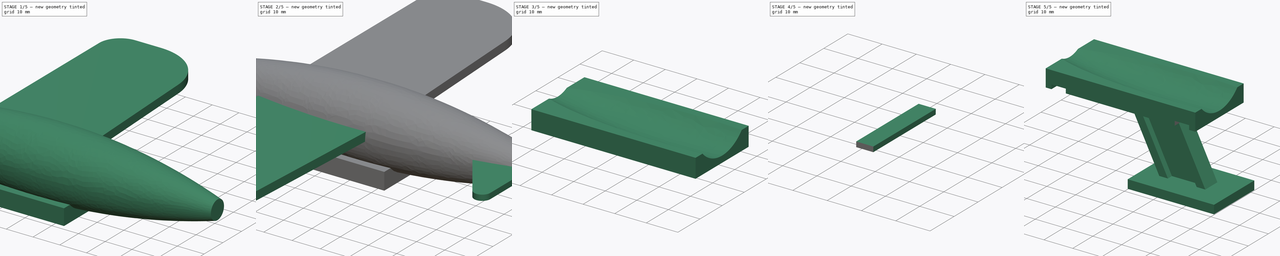
[diagram: build sequence overview — one tinted view per stage of 5, left to right]
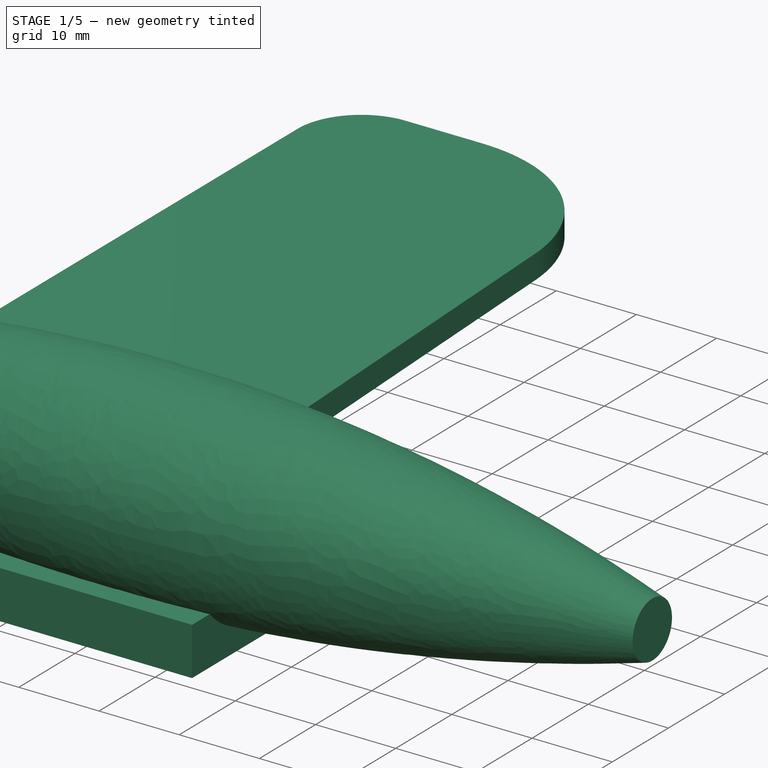
[diagram: stage 1 of 5 — iso view after this stage's code; geometry added in this stage tinted green]
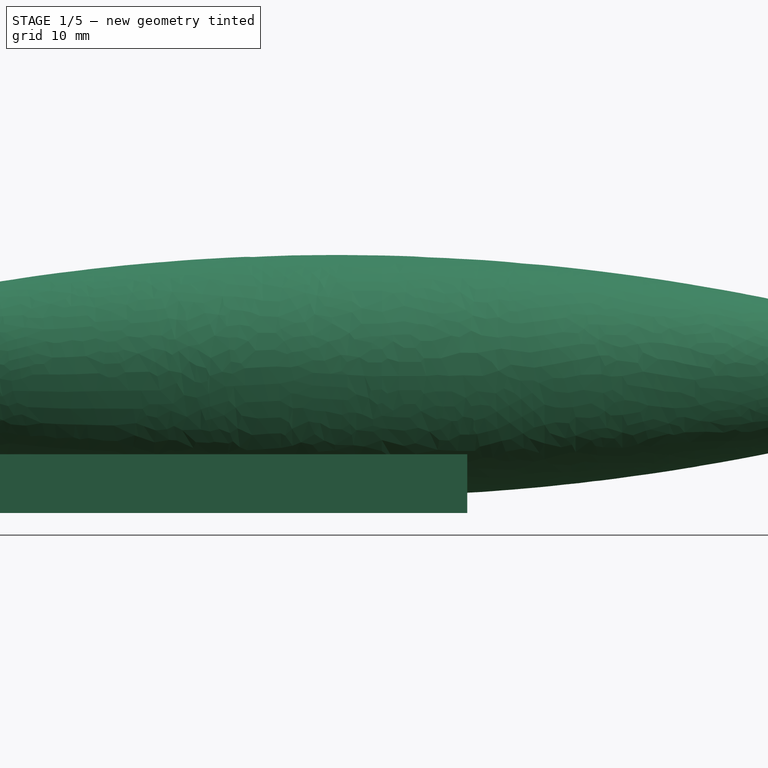
[diagram: stage 1 of 5 — front view after this stage's code; geometry added in this stage tinted green]
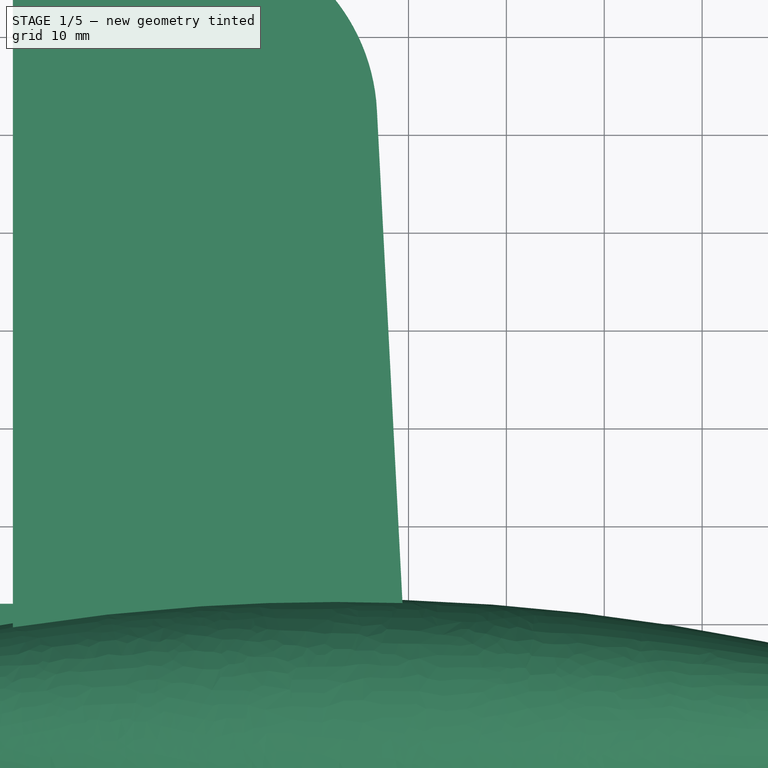
[diagram: stage 1 of 5 — top view after this stage's code; geometry added in this stage tinted green]
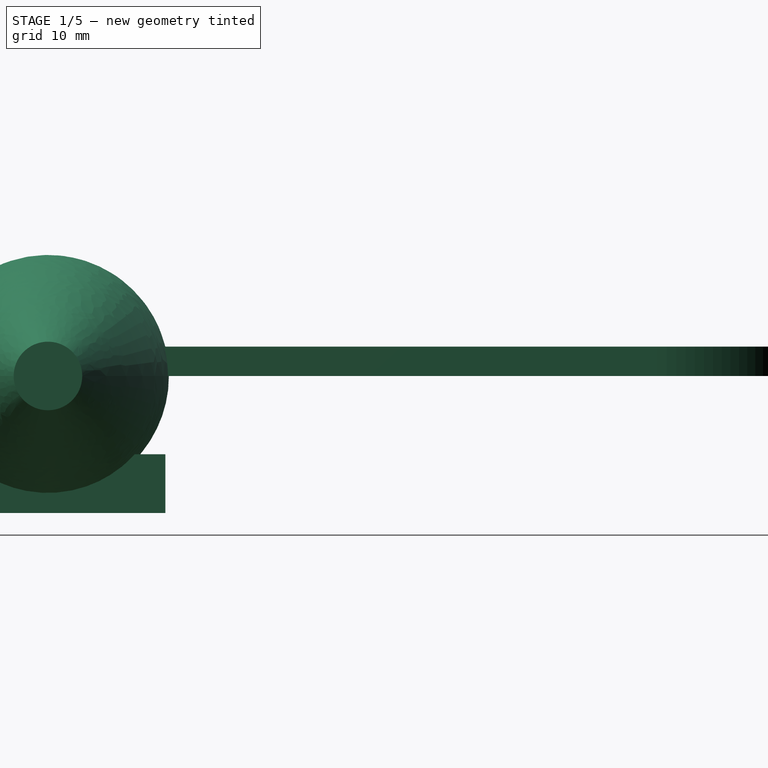
[diagram: stage 1 of 5 — right view after this stage's code; geometry added in this stage tinted green]
FCSTD DOCUMENT  (FreeCAD 0.20R27518 (Git))
Label: toy-plane-support
License: Creative Commons Attribution
LicenseURL: http://creativecommons.org/licenses/by/4.0/
objects: Sketcher::SketchObject×11, PartDesign::Pad×4, Part::Extrusion×3, Part::Cut×3, PartDesign::Plane×2, PartDesign::Mirrored×2, PartDesign::AdditiveLoft×1, PartDesign::Pocket×1, Part::MultiFuse×1, Part::Box×1, PartDesign::Body×1
note: 36 computed .brp shape members not serialized (recipe doc carries the construction recipe); baked Part::Feature solids carry a one-line shape summary decoded from their .brp

FEATURE [Sketcher::SketchObject] Sketch
  FullyConstrained = true
  MapMode = 5
  Placement = pos=(0,0,0) rot=(0.57735,0.57735,0.57735;2.0944rad)
  Support = -> [YZ_Plane001]
  sketch-geometry (1):
    g0: Circle CenterX=0 CenterY=0 CenterZ=0 NormalX=0 NormalY=0 NormalZ=1 AngleXU=0 Radius=6
  constraints (2):
    c: Coincident(g0,g-1)
    c: Diameter(g0) = 12
FEATURE [PartDesign::Plane] DatumPlane
  AttachmentOffset = pos=(0,0,40) rot=(0,0,1;0rad)
  Length = 181.746
  MapMode = 2
  Placement = pos=(40,-4.4e-15,4.4e-15) rot=(0.57735,0.57735,0.57735;2.0944rad)
  ResizeMode = 0
  Support = -> [Sketch]
  Width = 79.7196
FEATURE [Sketcher::SketchObject] Sketch001
  FullyConstrained = true
  MapMode = 5
  Placement = pos=(40,-4.4e-15,4.4e-15) rot=(0.57735,0.57735,0.57735;2.0944rad)
  Support = -> [DatumPlane]
  sketch-geometry (1):
    g0: Circle CenterX=0 CenterY=0 CenterZ=0 NormalX=0 NormalY=0 NormalZ=1 AngleXU=0 Radius=12
  constraints (2):
    c: Coincident(g0,g-1)
    c: Diameter(g0) = 24
FEATURE [PartDesign::Plane] DatumPlane001
  AttachmentOffset = pos=(0,0,75) rot=(0,0,1;0rad)
  Length = 181.746
  MapMode = 2
  Placement = pos=(115,-4.4e-15,4.4e-15) rot=(0.57735,0.57735,0.57735;2.0944rad)
  ResizeMode = 0
  Support = -> [Sketch001]
  Width = 79.7196
FEATURE [Sketcher::SketchObject] Sketch002
  FullyConstrained = true
  MapMode = 5
  Placement = pos=(115,-4.4e-15,4.4e-15) rot=(0.57735,0.57735,0.57735;2.0944rad)
  Support = -> [DatumPlane001]
  sketch-geometry (1):
    g0: Circle CenterX=0 CenterY=0 CenterZ=0 NormalX=0 NormalY=0 NormalZ=1 AngleXU=0 Radius=3.5
  constraints (2):
    c: Coincident(g0,g-1)
    c: Diameter(g0) = 7
FEATURE [PartDesign::AdditiveLoft] AdditiveLoft
  Closed = true
  Placement = pos=(0,0,0) rot=(0.57735,0.57735,0.57735;2.0944rad)
  Profile = -> Sketch
  Ruled = false
  Sections = -> [Sketch001,Sketch002]
FEATURE [Sketcher::SketchObject] Sketch003
  ExternalGeometry = -> [AdditiveLoft]
  FullyConstrained = false
  MapMode = 5
  Support = -> [XY_Plane001]
  sketch-geometry (10):
    g0: LineSegment StartX=0 StartY=0 StartZ=0 EndX=126.608 EndY=0 EndZ=0
    g1: LineSegment StartX=19.5847 StartY=0 StartZ=0 EndX=19.5847 EndY=51.0853 EndZ=0
    g2: LineSegment StartX=19.5847 StartY=0 StartZ=0 EndX=19.5847 EndY=73.0715 EndZ=0
    g3: LineSegment StartX=27.5263 StartY=81.0131 StartZ=0 EndX=37.0289 EndY=81.0131 EndZ=0
    g4: LineSegment StartX=56.7763 StartY=62.2633 StartZ=0 EndX=60.0052 EndY=0 EndZ=0
    g5: ArcOfCircle CenterX=27.5263 CenterY=73.0715 CenterZ=0 NormalX=0 NormalY=0 NormalZ=1 AngleXU=0 Radius=7.94163 StartAngle=1.5708 EndAngle=3.14159
    g6: GeomPoint X=19.5847 Y=81.0131 Z=0
    g7: ArcOfCircle CenterX=37.0289 CenterY=61.2392 CenterZ=0 NormalX=0 NormalY=0 NormalZ=1 AngleXU=0 Radius=19.7739 StartAngle=0.0518122 EndAngle=1.5708
    g8: GeomPoint X=55.8039 Y=81.0131 Z=0
    g9: LineSegment StartX=19.5847 StartY=0 StartZ=0 EndX=60.0052 EndY=0 EndZ=0
  constraints (18):
    c: Coincident(g0,g-1)
    c: PointOnObject(g0,g-1)
    c: Vertical(g1)
    c: PointOnObject(g1,g0)
    c: Coincident(g2,g1)
    c: Vertical(g2)
    c: Horizontal(g3)
    c: PointOnObject(g4,g0)
    c: PointOnObject(g6,g2)
    c: PointOnObject(g6,g3)
    c: Tangent(g2,g5) = 1.5708
    c: Tangent(g3,g5) = 1.5708
    c: PointOnObject(g8,g3)
    c: PointOnObject(g8,g4)
    c: Tangent(g3,g7) = 1.5708
    c: Tangent(g4,g7) = 1.5708
    c: Coincident(g9,g2)
    c: Coincident(g9,g4)
FEATURE [PartDesign::Pad] Pad
  BaseFeature = -> AdditiveLoft
  Direction = (0,0,1)
  Length = 3
  Length2 = 10
  Placement = pos=(0,0,0) rot=(0.57735,0.57735,0.57735;2.0944rad)
  Profile = -> Sketch003
  ReferenceAxis = -> Sketch003 [N_Axis]
  Type = 0
FEATURE [Part::Box] Box  label="Cube"
  AttacherType = Attacher::AttachEngine3D
  Height = 6
  Length = 52
  Placement = pos=(14,-12,-14) rot=(0,0,1;0rad)
  Width = 24
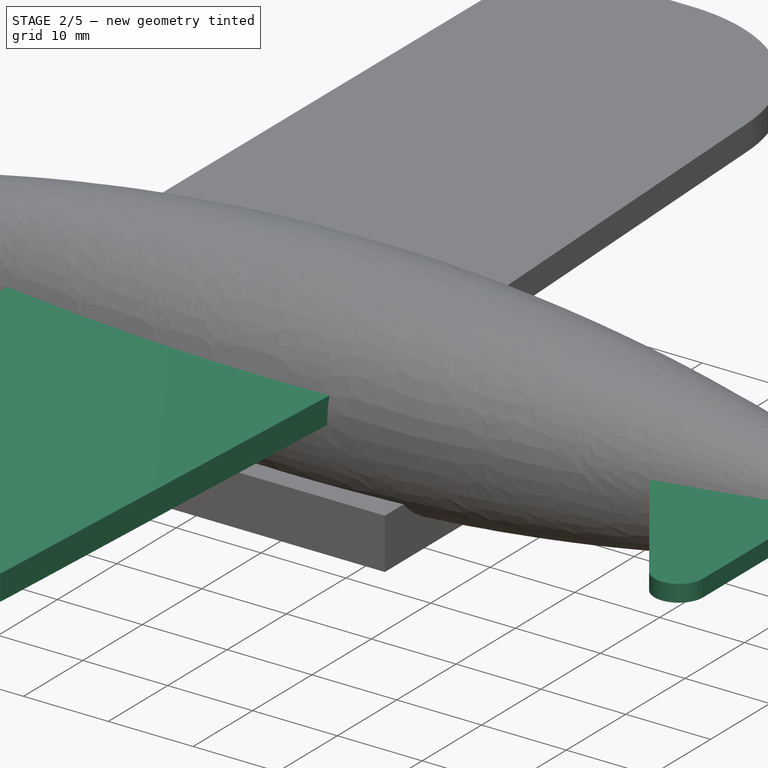
[diagram: stage 2 of 5 — iso view after this stage's code; geometry added in this stage tinted green]
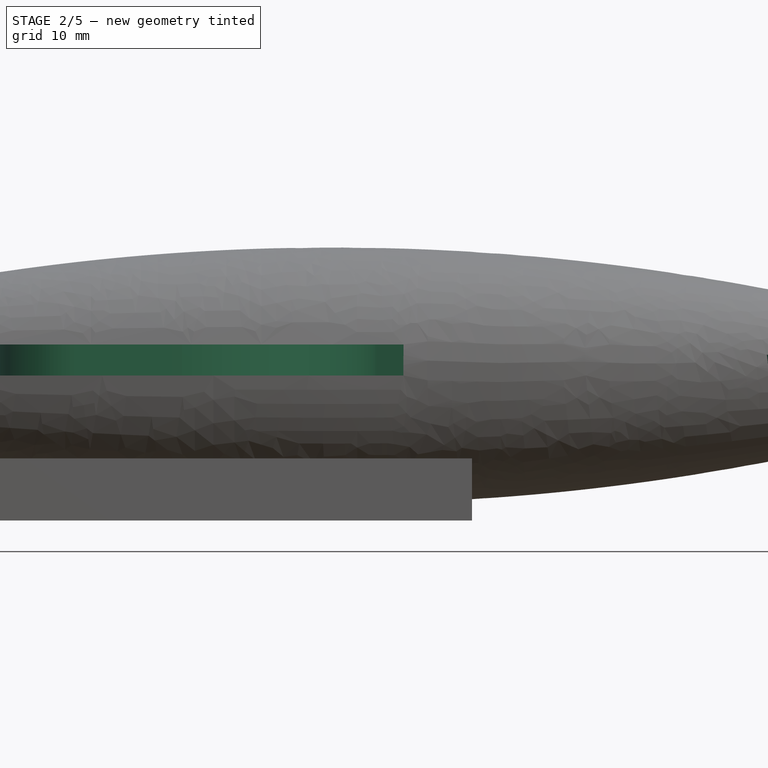
[diagram: stage 2 of 5 — front view after this stage's code; geometry added in this stage tinted green]
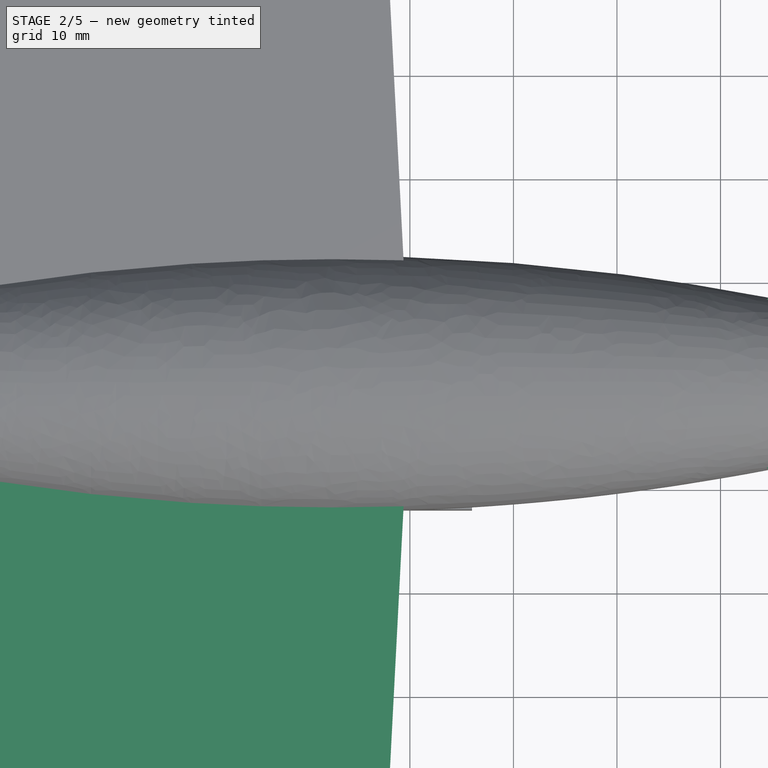
[diagram: stage 2 of 5 — top view after this stage's code; geometry added in this stage tinted green]
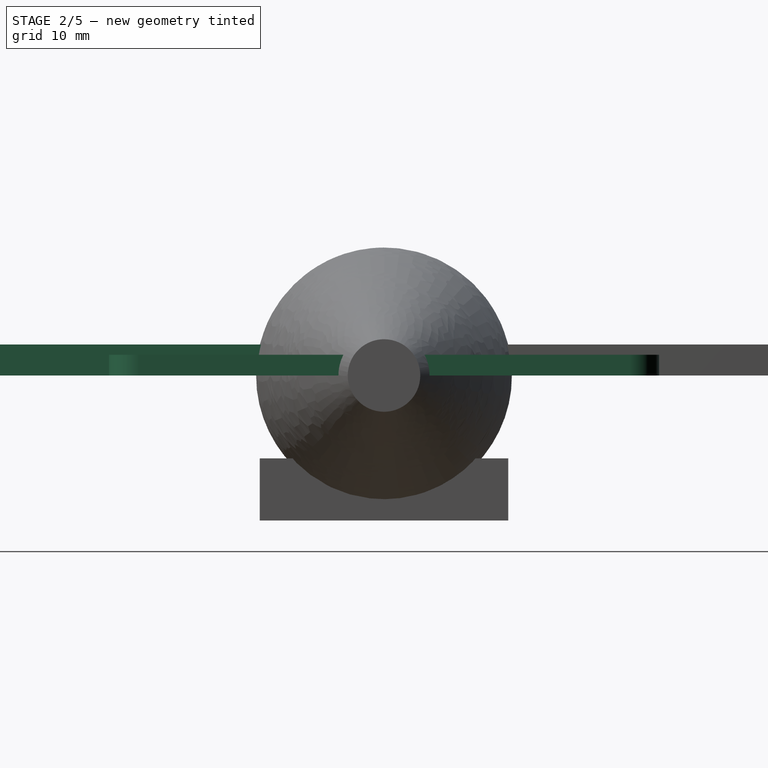
[diagram: stage 2 of 5 — right view after this stage's code; geometry added in this stage tinted green]
FEATURE [PartDesign::Mirrored] Mirrored
  BaseFeature = -> Pad
  MirrorPlane = -> XZ_Plane001
  Originals = -> [Pad]
  Overlap = 0
  Placement = pos=(0,0,0) rot=(0.57735,0.57735,0.57735;2.0944rad)
FEATURE [PartDesign::Pad] Pad001
  BaseFeature = -> Mirrored
  Direction = (0,0,1)
  Length = 2
  Length2 = 10
  Placement = pos=(0,0,0) rot=(0.57735,0.57735,0.57735;2.0944rad)
  Profile = -> Sketch004
  ReferenceAxis = -> Sketch004 [N_Axis]
  Type = 0
FEATURE [PartDesign::Mirrored] Mirrored001
  BaseFeature = -> Pad001
  MirrorPlane = -> XZ_Plane001
  Originals = -> [Pad001]
  Overlap = 0
  Placement = pos=(0,0,0) rot=(0.57735,0.57735,0.57735;2.0944rad)
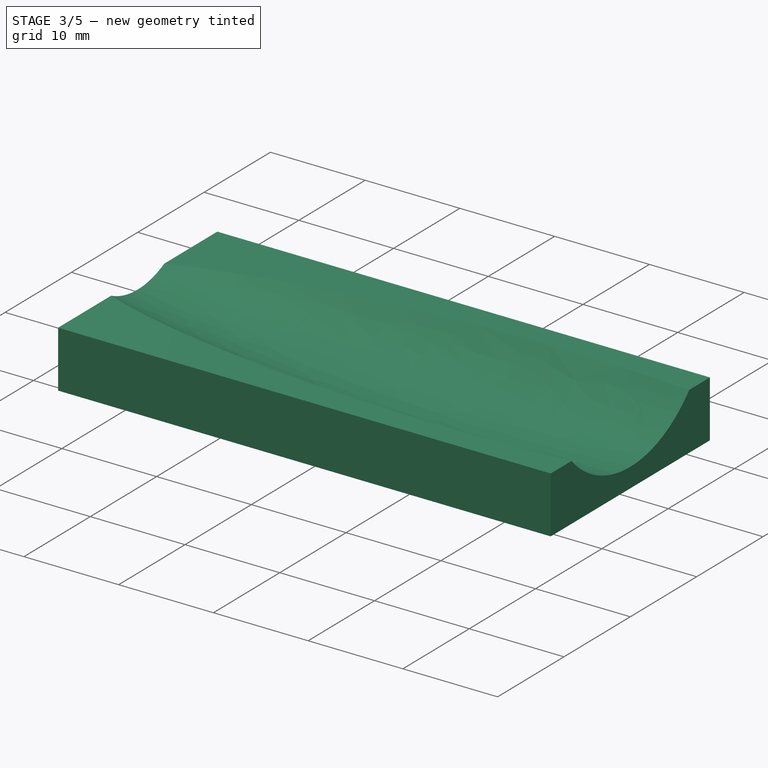
[diagram: stage 3 of 5 — iso view after this stage's code; geometry added in this stage tinted green]
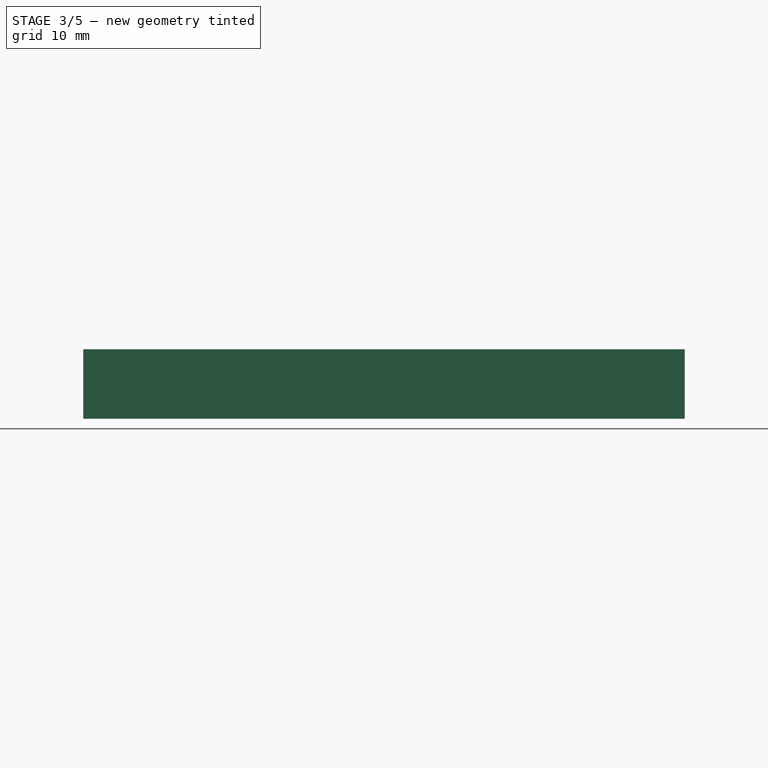
[diagram: stage 3 of 5 — front view after this stage's code; geometry added in this stage tinted green]
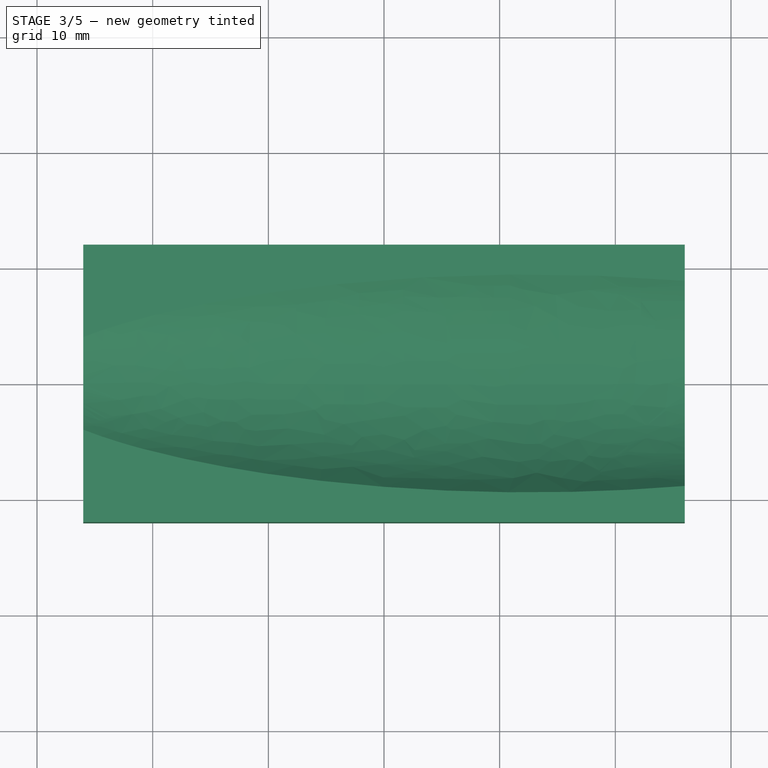
[diagram: stage 3 of 5 — top view after this stage's code; geometry added in this stage tinted green]
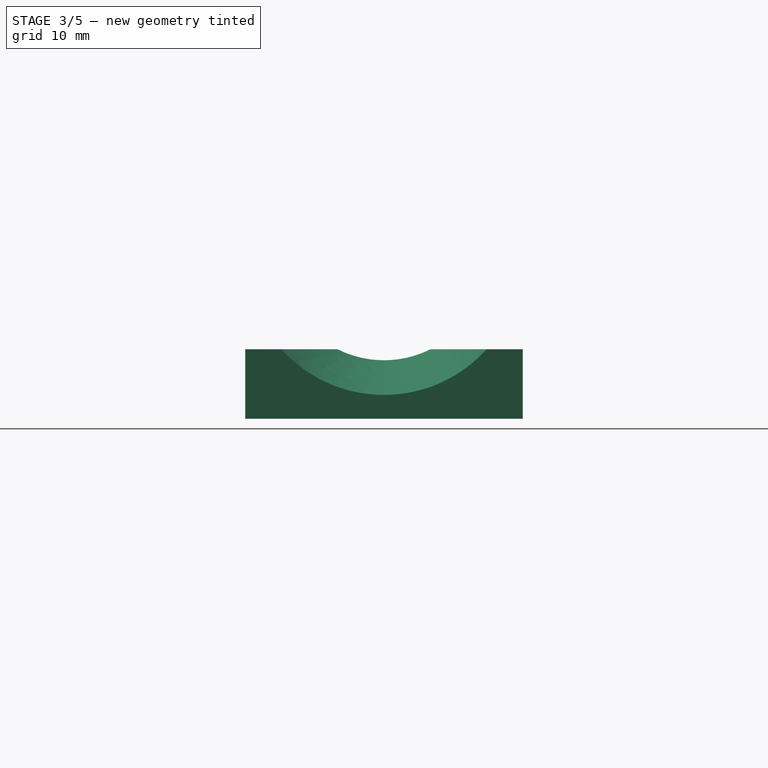
[diagram: stage 3 of 5 — right view after this stage's code; geometry added in this stage tinted green]
FEATURE [Sketcher::SketchObject] Sketch004
  FullyConstrained = false
  sketch-geometry (4):
    g0: LineSegment StartX=88.8164 StartY=0 StartZ=0 EndX=106.509 EndY=25.3462 EndZ=0
    g1: LineSegment StartX=111.724 StartY=23.7058 StartZ=0 EndX=111.724 EndY=0 EndZ=0
    g2: LineSegment StartX=88.8164 StartY=0 StartZ=0 EndX=111.724 EndY=0 EndZ=0
    g3: ArcOfCircle CenterX=108.859 CenterY=23.7058 CenterZ=0 NormalX=0 NormalY=0 NormalZ=1 AngleXU=0 Radius=2.86589 StartAngle=0 EndAngle=2.5322
  constraints (5):
    c: Vertical(g1)
    c: Coincident(g2,g1)
    c: Coincident(g2,g0)
    c: Tangent(g0,g3) = 1.5708
    c: Tangent(g1,g3) = 1.5708
FEATURE [Sketcher::SketchObject] Sketch006
  FullyConstrained = false
  MapMode = 5
  Placement = pos=(0,0,0) rot=(1,0,0;1.5708rad)
  Support = -> [XZ_Plane001]
  sketch-geometry (5):
    g0: LineSegment StartX=88.7493 StartY=-3.6e-15 StartZ=0 EndX=110.928 EndY=-3.6e-15 EndZ=0
    g1: LineSegment StartX=110.928 StartY=-3.6e-15 StartZ=0 EndX=109.854 EndY=21.8437 EndZ=0
    g2: LineSegment StartX=106.985 StartY=22.7724 StartZ=0 EndX=88.7493 EndY=-3.6e-15 EndZ=0
    g3: ArcOfCircle CenterX=108.243 CenterY=21.7645 CenterZ=0 NormalX=0 NormalY=0 NormalZ=1 AngleXU=0 Radius=1.61251 StartAngle=0.0491411 EndAngle=2.46638
    g4: GeomPoint X=109.645 Y=26.0945 Z=0
  constraints (7):
    c: Horizontal(g0)
    c: Coincident(g2,g0)
    c: Coincident(g1,g0)
    c: PointOnObject(g4,g2)
    c: PointOnObject(g4,g1)
    c: Tangent(g2,g3) = -1.5708
    c: Tangent(g1,g3) = -1.5708
FEATURE [Part::Extrusion] Extrude
  Base = -> Sketch006
  Dir = (0,1,0)
  DirMode = 0
  FaceMakerClass = Part::FaceMakerBullseye
  LengthFwd = 2
  LengthRev = 0
  Solid = true
  Symmetric = true
  TaperAngle = 2
  TaperAngleRev = -2
FEATURE [Sketcher::SketchObject] Sketch005
  FullyConstrained = true
  MapMode = 5
  Placement = pos=(0,0,0) rot=(0.57735,0.57735,-0.57735;4.18879rad)
  Support = -> [Mirrored001]
  sketch-geometry (1):
    g0: Circle CenterX=0 CenterY=0 CenterZ=0 NormalX=0 NormalY=0 NormalZ=1 AngleXU=0 Radius=1.6
  constraints (2):
    c: Coincident(g0,g-1)
    c: Diameter(g0) = 3.2
FEATURE [PartDesign::Pocket] Pocket
  BaseFeature = -> Mirrored001
  Direction = (1,-1e-16,3e-16)
  Length = 15
  Length2 = 5
  Placement = pos=(0,0,0) rot=(0.57735,0.57735,0.57735;2.0944rad)
  Profile = -> Sketch005
  ReferenceAxis = -> Sketch005 [N_Axis]
  Type = 0
FEATURE [Part::MultiFuse] Fusion
  Shapes = -> [Pocket,Extrude]
FEATURE [Part::Cut] Cut
  Base = -> Box
  Tool = -> Fusion
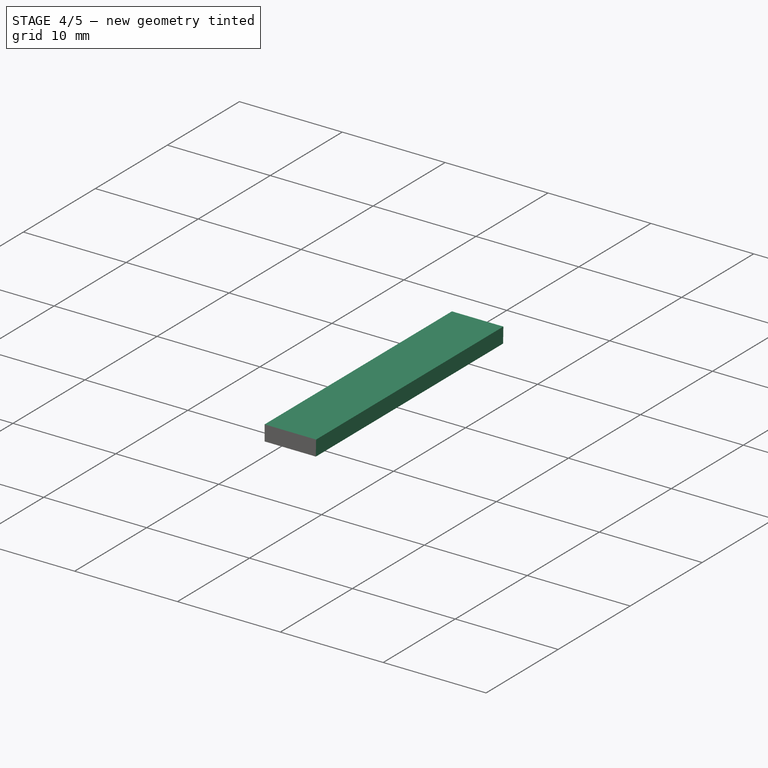
[diagram: stage 4 of 5 — iso view after this stage's code; geometry added in this stage tinted green]
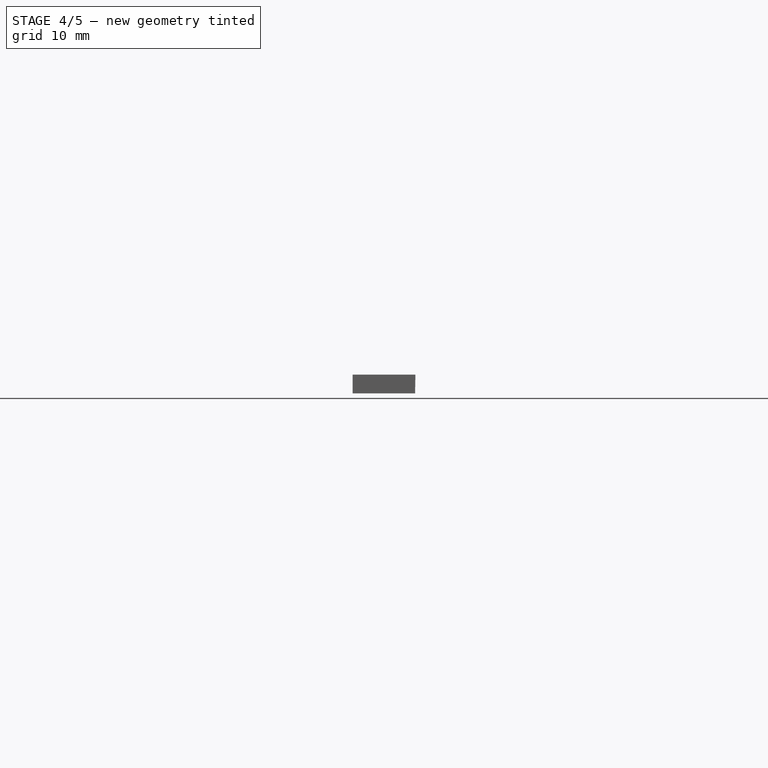
[diagram: stage 4 of 5 — front view after this stage's code; geometry added in this stage tinted green]
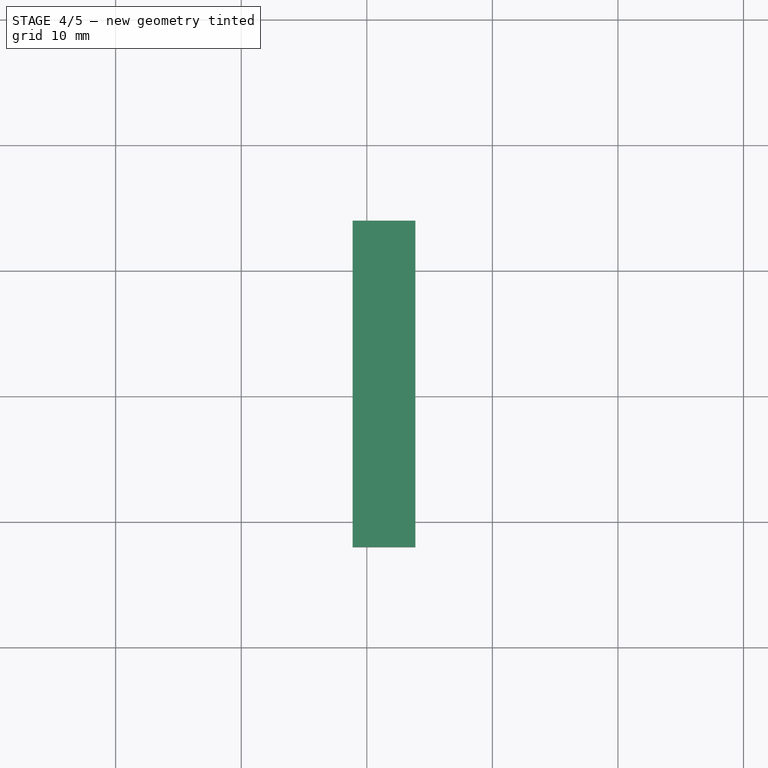
[diagram: stage 4 of 5 — top view after this stage's code; geometry added in this stage tinted green]
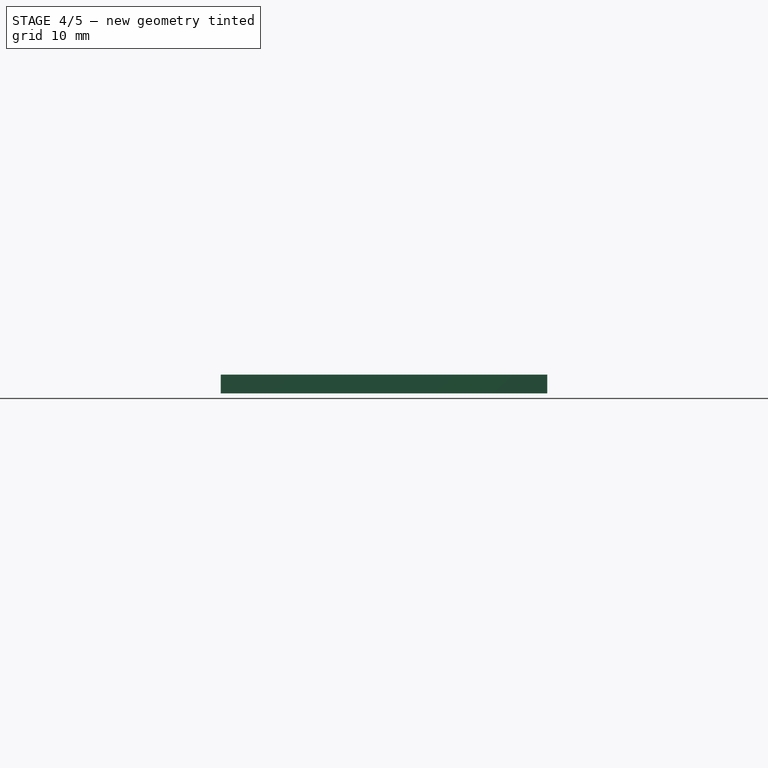
[diagram: stage 4 of 5 — right view after this stage's code; geometry added in this stage tinted green]
FEATURE [Sketcher::SketchObject] Sketch007
  FullyConstrained = true
  MapMode = 5
  Placement = pos=(14,-12,-14) rot=(1,0,0;1.5708rad)
  Support = -> [Box]
  sketch-geometry (5):
    g0: LineSegment StartX=0 StartY=0 StartZ=0 EndX=2 EndY=0 EndZ=0
    g1: LineSegment StartX=2 StartY=0 StartZ=0 EndX=2 EndY=1.5 EndZ=0
    g2: LineSegment StartX=2 StartY=1.5 StartZ=0 EndX=7 EndY=1.5 EndZ=0
    g3: LineSegment StartX=7 StartY=1.5 StartZ=0 EndX=7 EndY=1.29907e-11 EndZ=0
    g4: LineSegment StartX=7 StartY=1.29907e-11 StartZ=0 EndX=2 EndY=0 EndZ=0
  constraints (14):
    c: Coincident(g0,g-1)
    c: Horizontal(g0)
    c: DistanceX(g0,g0) = 2
    c: Coincident(g1,g0)
    c: Vertical(g1)
    c: Coincident(g2,g1)
    c: Horizontal(g2)
    c: Coincident(g3,g2)
    c: Vertical(g3)
    c: DistanceY(g1,g1) = 1.5
    c: DistanceX(g2,g2) = 5
    c: Equal(g1,g3)
    c: Coincident(g4,g3)
    c: Coincident(g4,g1)
FEATURE [Part::Extrusion] Extrude001
  Base = -> Sketch007
  Dir = (0,-1,2e-16)
  DirMode = 2
  FaceMakerClass = Part::FaceMakerBullseye
  LengthFwd = 25
  LengthRev = 0
  Reversed = true
  Solid = true
  Symmetric = false
FEATURE [Part::Cut] Cut001
  Base = -> Cut
  Tool = -> Extrude001
FEATURE [Sketcher::SketchObject] Sketch008
  ExternalGeometry = -> [Cut001]
  FullyConstrained = false
  MapMode = 5
  Placement = pos=(0,-12,0) rot=(1,0,0;1.5708rad)
  Support = -> [Cut001]
  sketch-geometry (5):
    g0: LineSegment StartX=66 StartY=-14 StartZ=0 EndX=63.8456 EndY=-14 EndZ=0
    g1: LineSegment StartX=63.8456 StartY=-14 StartZ=0 EndX=63.8697 EndY=-12.5 EndZ=0
    g2: LineSegment StartX=63.8697 StartY=-12.5 StartZ=0 EndX=58.8697 EndY=-12.5 EndZ=0
    g3: LineSegment StartX=58.8697 StartY=-12.5 StartZ=0 EndX=58.8697 EndY=-14 EndZ=0
    g4: LineSegment StartX=63.8456 StartY=-14 StartZ=0 EndX=58.8697 EndY=-14 EndZ=0
  constraints (11):
    c: Coincident(g0,g-4)
    c: PointOnObject(g0,g-3)
    c: Coincident(g1,g0)
    c: Coincident(g2,g1)
    c: Horizontal(g2)
    c: Coincident(g3,g2)
    c: Vertical(g3)
    c: Coincident(g4,g1)
    c: DistanceY(g1,g1) = 1.5
    c: DistanceX(g2,g2) = 5
    c: Coincident(g4,g3)
FEATURE [Part::Extrusion] Extrude002
  Base = -> Sketch008
  Dir = (0,-1,2e-16)
  DirMode = 2
  FaceMakerClass = Part::FaceMakerBullseye
  LengthFwd = 26
  LengthRev = 0
  Reversed = true
  Solid = true
  Symmetric = false
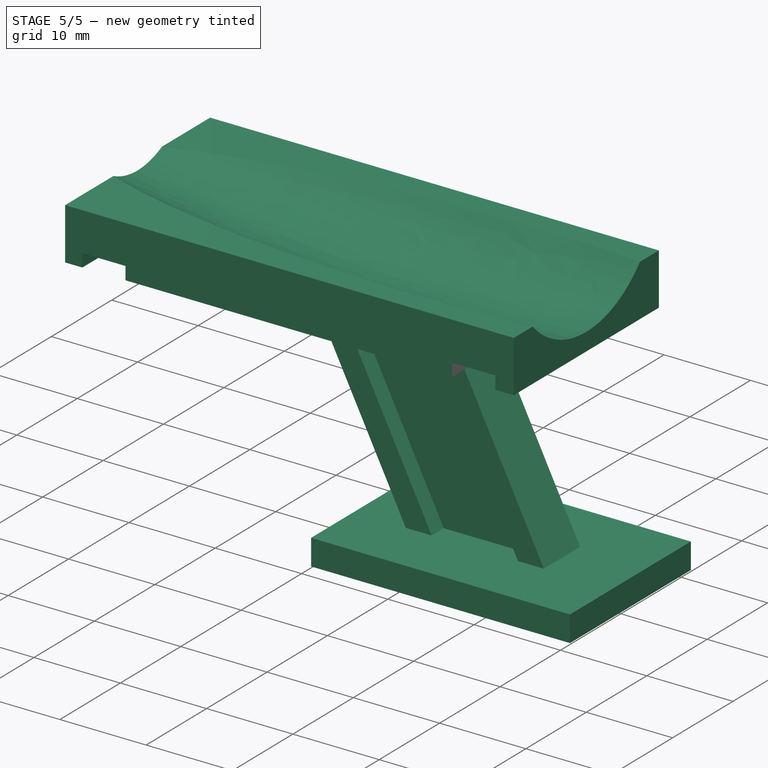
[diagram: stage 5 of 5 — iso view after this stage's code; geometry added in this stage tinted green]
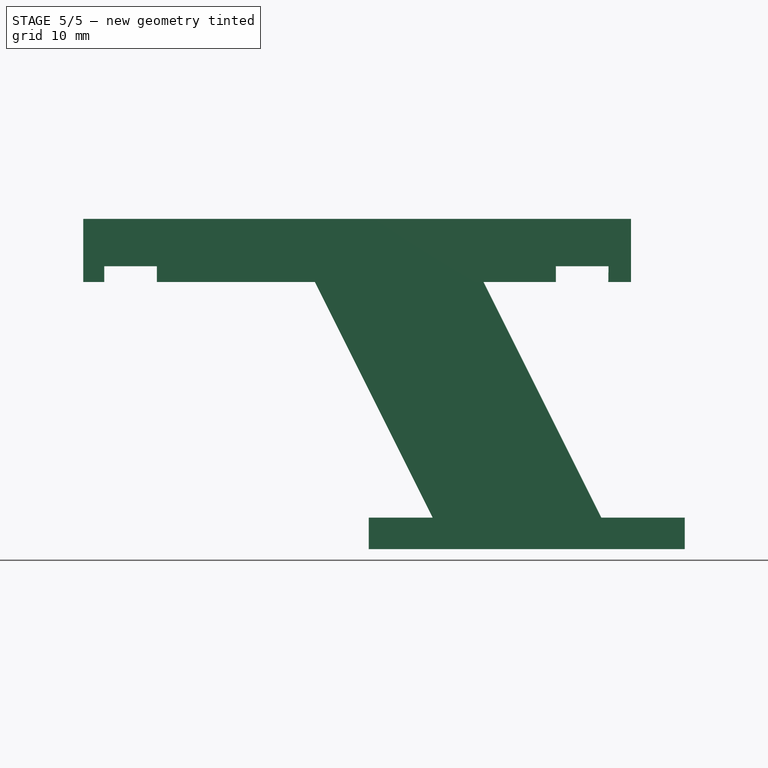
[diagram: stage 5 of 5 — front view after this stage's code; geometry added in this stage tinted green]
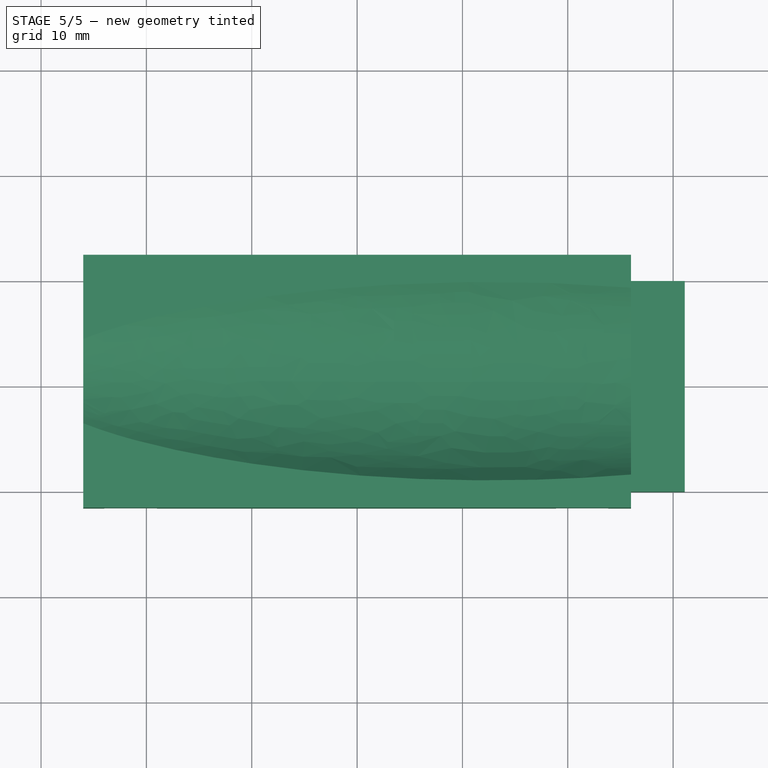
[diagram: stage 5 of 5 — top view after this stage's code; geometry added in this stage tinted green]
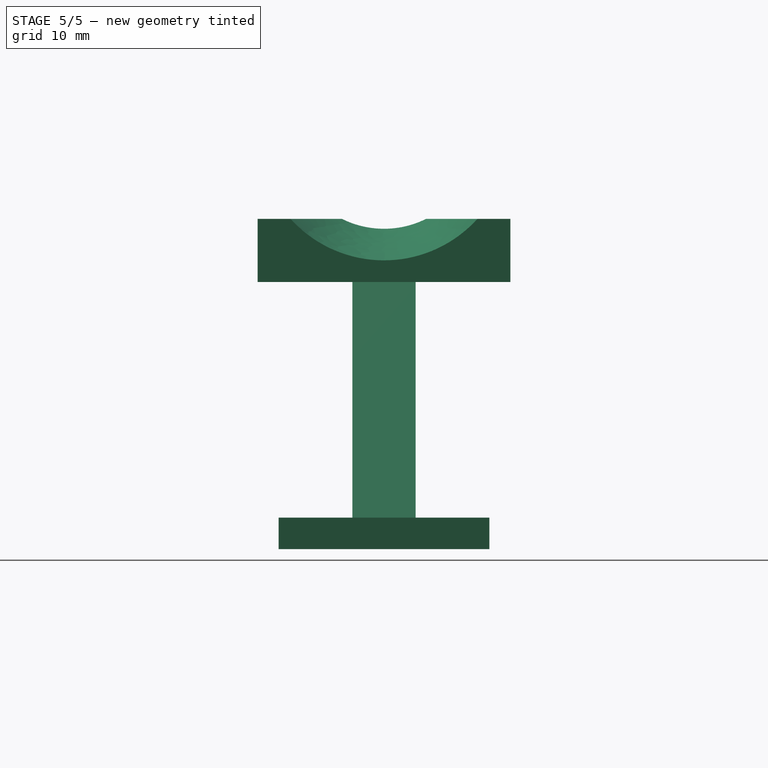
[diagram: stage 5 of 5 — right view after this stage's code; geometry added in this stage tinted green]
FEATURE [Part::Cut] Cut002
  Base = -> Cut001
  Tool = -> Extrude002
FEATURE [Sketcher::SketchObject] Sketch009
  ExternalGeometry = -> [Cut002]
  FullyConstrained = true
  MapMode = 5
  Placement = pos=(0,0,-14) rot=(1,0,0;3.14159rad)
  Support = -> [Cut002]
  sketch-geometry (14):
    g0: LineSegment StartX=21 StartY=0 StartZ=0 EndX=36 EndY=0 EndZ=0
    g1: LineSegment StartX=36 StartY=0 StartZ=0 EndX=36 EndY=3 EndZ=0
    g2: LineSegment StartX=36 StartY=3 StartZ=0 EndX=39 EndY=3 EndZ=0
    g3: LineSegment StartX=39 StartY=3 StartZ=0 EndX=39 EndY=1 EndZ=0
    g4: LineSegment StartX=39 StartY=1 StartZ=0 EndX=49 EndY=1 EndZ=0
    g5: LineSegment StartX=49 StartY=1 StartZ=0 EndX=49 EndY=3 EndZ=0
    g6: LineSegment StartX=49 StartY=3 StartZ=0 EndX=52 EndY=3 EndZ=0
    g7: LineSegment StartX=52 StartY=3 StartZ=0 EndX=52 EndY=-3 EndZ=0
    g8: LineSegment StartX=52 StartY=-3 StartZ=0 EndX=49 EndY=-3 EndZ=0
    g9: LineSegment StartX=49 StartY=-3 StartZ=0 EndX=49 EndY=-1 EndZ=0
    g10: LineSegment StartX=49 StartY=-1 StartZ=0 EndX=39 EndY=-1 EndZ=0
    g11: LineSegment StartX=39 StartY=-1 StartZ=0 EndX=39 EndY=-3 EndZ=0
    g12: LineSegment StartX=39 StartY=-3 StartZ=0 EndX=36 EndY=-3 EndZ=0
    g13: LineSegment StartX=36 StartY=-3 StartZ=0 EndX=36 EndY=0 EndZ=0
  constraints (43):
    c: Horizontal(g0)
    c: DistanceY(g0,g-4) = 12
    c: DistanceX(g0,g0) = 15
    c: PointOnObject(g0,g-3)
    c: Coincident(g1,g0)
    c: Vertical(g1)
    c: Coincident(g2,g1)
    c: Horizontal(g2)
    c: Coincident(g3,g2)
    c: Vertical(g3)
    c: Coincident(g4,g3)
    c: Horizontal(g4)
    c: Coincident(g5,g4)
    c: Vertical(g5)
    c: Coincident(g6,g5)
    c: Horizontal(g6)
    c: Coincident(g7,g6)
    c: Vertical(g7)
    c: DistanceY(g1,g1) = 3
    c: DistanceX(g2,g2) = 3
    c: DistanceY(g3,g3) = 2
    c: DistanceX(g4,g4) = 10
    c: DistanceY(g5,g5) = 2
    c: DistanceX(g6,g6) = 3
    c: DistanceY(g7,g7) = 6
    c: Coincident(g8,g7)
    c: Horizontal(g8)
    c: Coincident(g9,g8)
    c: Horizontal(g10)
    c: Coincident(g11,g10)
    c: Vertical(g11)
    c: Coincident(g12,g11)
    c: Horizontal(g12)
    c: Coincident(g13,g12)
    c: Coincident(g13,g1)
    c: Vertical(g13)
    c: DistanceX(g8,g8) = 3
    c: DistanceY(g9,g9) = 2
    c: Vertical(g9)
    c: DistanceX(g10,g10) = 10
    c: DistanceY(g11,g11) = 2
    c: DistanceX(g12,g12) = 3
    c: DistanceY(g13,g13) = 3
FEATURE [PartDesign::Pad] Pad002
  AlongSketchNormal = false
  Direction = (0.5,0,-1)
  Length = 25
  Length2 = 10
  Profile = -> Sketch009
  ReferenceAxis = -> Sketch009 [N_Axis]
  Type = 0
  UseCustomVector = true
FEATURE [Sketcher::SketchObject] Sketch010
  ExternalGeometry = -> [Pad002]
  FullyConstrained = false
  MapMode = 5
  Placement = pos=(0,0,-36.3607) rot=(1,0,0;3.14159rad)
  Support = -> [Pad002]
  sketch-geometry (4):
    g0: LineSegment StartX=71.1091 StartY=-10 StartZ=0 EndX=71.1091 EndY=10 EndZ=0
    g1: LineSegment StartX=71.1091 StartY=10 StartZ=0 EndX=41.1091 EndY=10 EndZ=0
    g2: LineSegment StartX=41.1091 StartY=10 StartZ=0 EndX=41.1091 EndY=-10 EndZ=0
    g3: LineSegment StartX=41.1091 StartY=-10 StartZ=0 EndX=71.1091 EndY=-10 EndZ=0
  constraints (11):
    c: Vertical(g0)
    c: DistanceY(g0,g0) = 20
    c: DistanceY(g-3,g0) = 7
    c: Coincident(g1,g0)
    c: Horizontal(g1)
    c: Coincident(g2,g1)
    c: Vertical(g2)
    c: Coincident(g3,g2)
    c: Coincident(g3,g0)
    c: Horizontal(g3)
    c: DistanceX(g1,g1) = 30
FEATURE [PartDesign::Pad] Pad003
  BaseFeature = -> Pad002
  Direction = (0,0,-1)
  Length = 3
  Length2 = 10
  Profile = -> Sketch010
  ReferenceAxis = -> Sketch010 [N_Axis]
  Type = 0
FEATURE [PartDesign::Body] Body
  Group = -> [Extrude,Fusion,Box,Sketch007,Extrude001,Cut,Cut001,Sketch008,Extrude002,Cut002,Sketch009,Pad002,Sketch010,Pad003]
  Origin = -> Origin
  Tip = -> Pad003
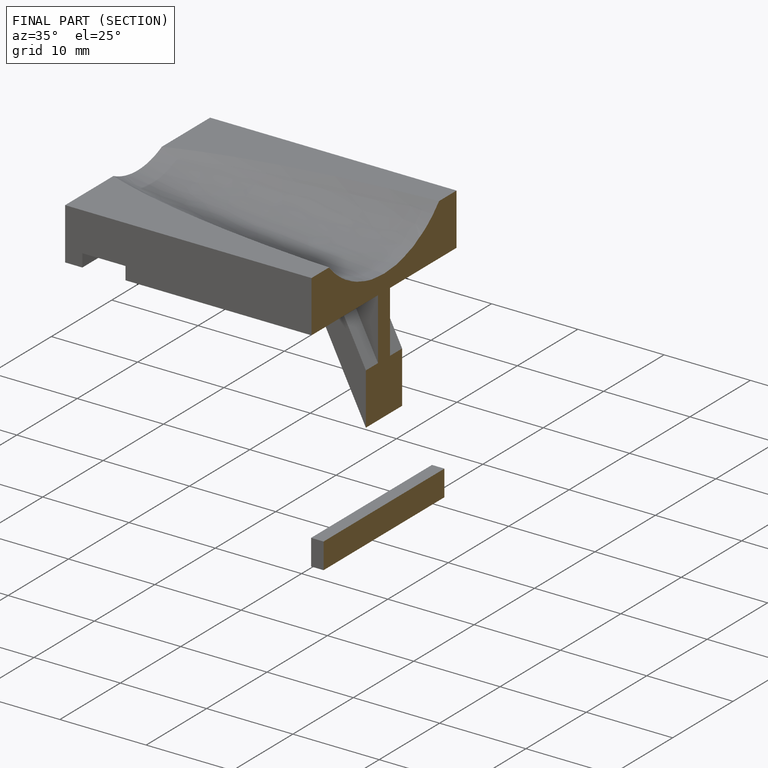
[diagram: finished part — half-section view (interior)]
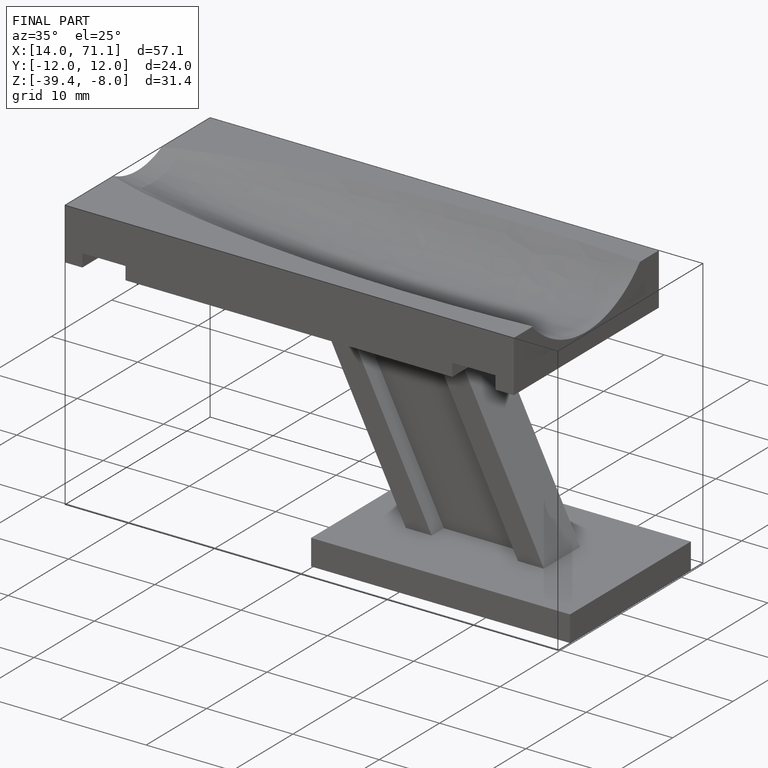
[diagram: finished part — iso view with bounding-box wireframe]
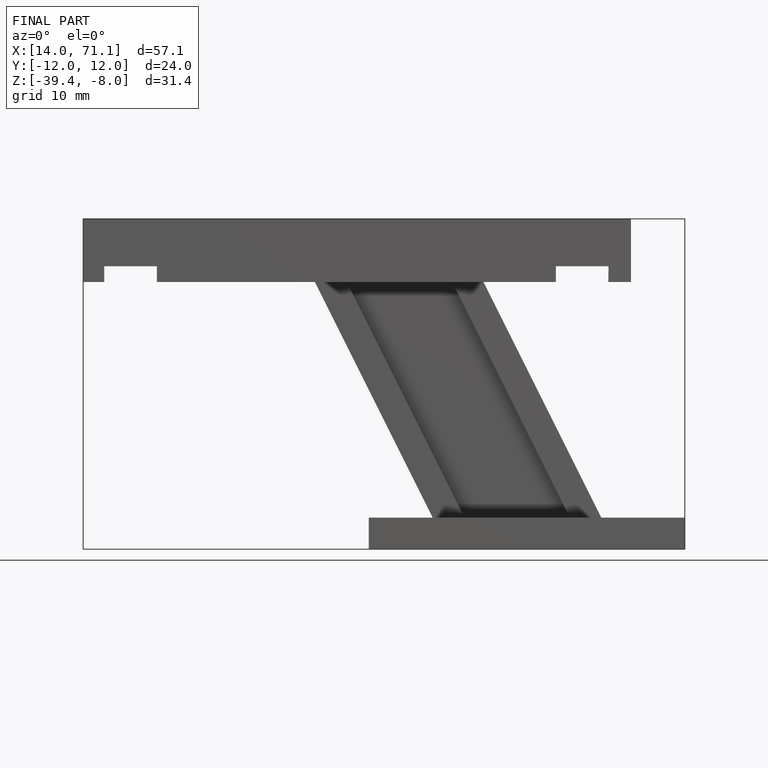
[diagram: finished part — front view with bounding-box wireframe]
